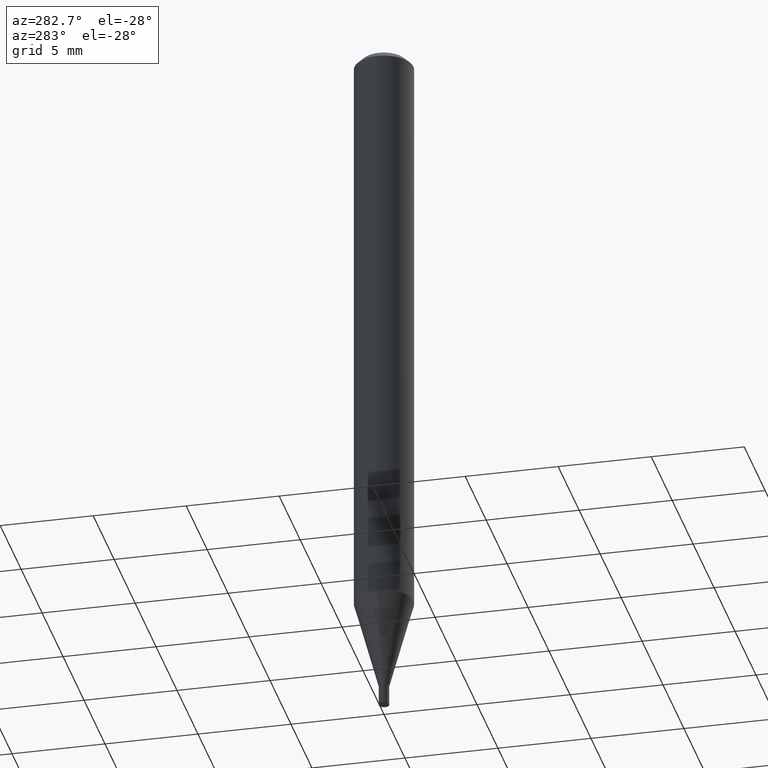
[diagram: clean part render]
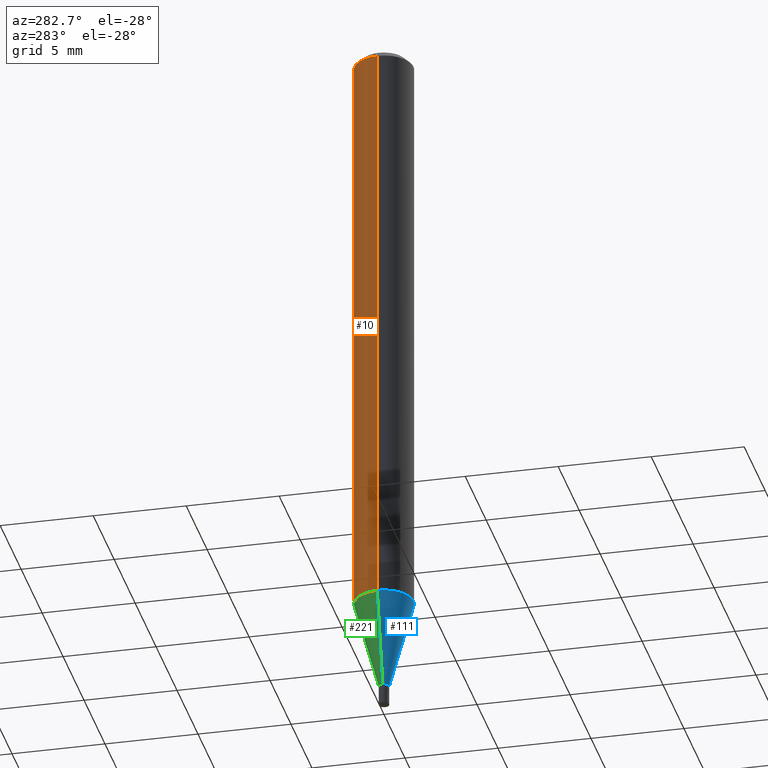
[diagram: same view with three faces highlighted in distinct colors, each labeled with its STEP entity id]
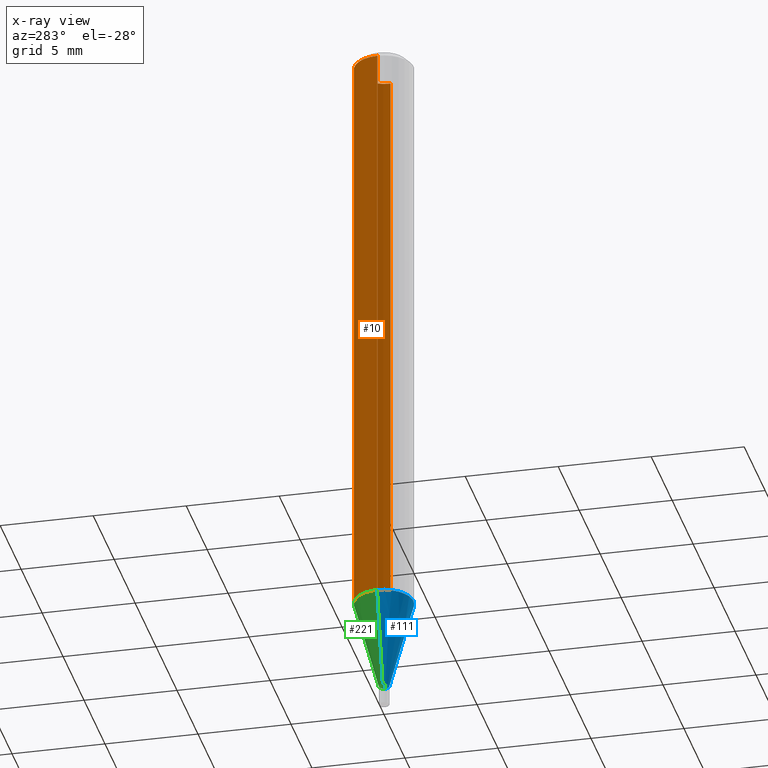
[diagram: x-ray of the same camera — body ghosted, the three highlighted faces saturated]
A machine part, auxiliary view with three faces highlighted in distinct colors.
The next image is the same camera in x-ray (body ghosted, the three faces saturated) — at least one of them is partly hidden behind the body in this view.
Their STEP definitions:

[orange] entity #10 — the highlighted cylindrical surface (edge-blend (fillet) strip) has radius 1.5875 mm, axis along (-0, 0, 1).
#6 = EDGE_CURVE ( 'NONE', #90, #301, #130, .T. ) ;
#10 = ADVANCED_FACE ( 'NONE', ( #121 ), #53, .T. ) ;
#30 = VERTEX_POINT ( 'NONE', #180 ) ;
#48 = ORIENTED_EDGE ( 'NONE', *, *, #423, .F. ) ;
#53 = CYLINDRICAL_SURFACE ( 'NONE', #438, 0.06250000000000000000 ) ;
#83 = VERTEX_POINT ( 'NONE', #389 ) ;
#89 = ORIENTED_EDGE ( 'NONE', *, *, #6, .T. ) ;
#90 = VERTEX_POINT ( 'NONE', #344 ) ;
#104 = DIRECTION ( 'NONE',  ( -2.445468806185136877E-29, 3.491481338843145188E-15, 1.000000000000000000 ) ) ;
#109 = VECTOR ( 'NONE', #337, 39.37007874015748143 ) ;
#118 = EDGE_CURVE ( 'NONE', #83, #30, #402, .T. ) ;
#121 = FACE_OUTER_BOUND ( 'NONE', #368, .T. ) ;
#129 = LINE ( 'NONE', #415, #109 ) ;
#130 = CIRCLE ( 'NONE', #193, 0.06250000000000000000 ) ;
#151 = CARTESIAN_POINT ( 'NONE',  ( -0.06250000000000000000, -3.971934234706977480E-15, -1.264799383410203149 ) ) ;
#153 = DIRECTION ( 'NONE',  ( -2.445468806185136597E-29, 3.491481338843145583E-15, 1.000000000000000000 ) ) ;
#168 = EDGE_CURVE ( 'NONE', #301, #30, #463, .T. ) ;
#180 = CARTESIAN_POINT ( 'NONE',  ( -0.06250000000000000000, -1.790108622469781169E-15, -0.01499999999999999944 ) ) ;
#193 = AXIS2_PLACEMENT_3D ( 'NONE', #270, #153, #196 ) ;
#196 = DIRECTION ( 'NONE',  ( 1.000000000000000000, -6.982962677686262766E-15, 0.000000000000000000 ) ) ;
#200 = CARTESIAN_POINT ( 'NONE',  ( 0.000000000000000000, 0.000000000000000000, 0.000000000000000000 ) ) ;
#205 = AXIS2_PLACEMENT_3D ( 'NONE', #288, #347, #285 ) ;
#251 = DIRECTION ( 'NONE',  ( 1.000000000000000000, -6.982962677686266711E-15, 4.876176775795935793E-29 ) ) ;
#270 = CARTESIAN_POINT ( 'NONE',  ( 3.093027438211846075E-29, -4.416023444557040885E-15, -1.264799383410203149 ) ) ;
#285 = DIRECTION ( 'NONE',  ( 1.000000000000000000, -6.982962677686266711E-15, 0.000000000000000000 ) ) ;
#288 = CARTESIAN_POINT ( 'NONE',  ( 3.668203209277705088E-31, -5.237222008264718399E-17, -0.01499999999999999944 ) ) ;
#301 = VERTEX_POINT ( 'NONE', #151 ) ;
#313 = CARTESIAN_POINT ( 'NONE',  ( -0.06250000000000000000, 4.440892098500626162E-16, -3.074334431409316114E-30 ) ) ;
#337 = DIRECTION ( 'NONE',  ( -2.445468806185136877E-29, 3.491481338843145188E-15, 1.000000000000000000 ) ) ;
#339 = DIRECTION ( 'NONE',  ( -2.445468806185136597E-29, 3.491481338843145583E-15, 1.000000000000000000 ) ) ;
#344 = CARTESIAN_POINT ( 'NONE',  ( 0.06250000000000000000, -4.852458611912431766E-15, -1.264799383410203149 ) ) ;
#347 = DIRECTION ( 'NONE',  ( -2.445468806185136597E-29, 3.491481338843145583E-15, 1.000000000000000000 ) ) ;
#348 = ORIENTED_EDGE ( 'NONE', *, *, #168, .T. ) ;
#364 = VECTOR ( 'NONE', #104, 39.37007874015748143 ) ;
#368 = EDGE_LOOP ( 'NONE', ( #89, #348, #377, #48 ) ) ;
#377 = ORIENTED_EDGE ( 'NONE', *, *, #118, .F. ) ;
#389 = CARTESIAN_POINT ( 'NONE',  ( 0.06250000000000000000, -4.888073874380388472E-16, -0.01499999999999999944 ) ) ;
#402 = CIRCLE ( 'NONE', #205, 0.06250000000000000000 ) ;
#415 = CARTESIAN_POINT ( 'NONE',  ( 0.06250000000000000000, -4.364351673553916694E-16, 3.047610484872459871E-30 ) ) ;
#423 = EDGE_CURVE ( 'NONE', #90, #83, #129, .T. ) ;
#438 = AXIS2_PLACEMENT_3D ( 'NONE', #200, #339, #251 ) ;
#463 = LINE ( 'NONE', #313, #364 ) ;

[blue] entity #111 — the highlighted conical surface has half-angle 15 deg.
#23 = CIRCLE ( 'NONE', #379, 0.06250000000000000000 ) ;
#32 = DIRECTION ( 'NONE',  ( 0.2588190451025213501, 1.565188264969621968E-15, 0.9659258262890682012 ) ) ;
#46 = VERTEX_POINT ( 'NONE', #140 ) ;
#69 = EDGE_CURVE ( 'NONE', #301, #90, #23, .T. ) ;
#90 = VERTEX_POINT ( 'NONE', #344 ) ;
#92 = CARTESIAN_POINT ( 'NONE',  ( 3.563048050611744147E-29, -5.087088310694462559E-15, -1.457000000000000073 ) ) ;
#98 = EDGE_LOOP ( 'NONE', ( #192, #190, #179, #434 ) ) ;
#99 = DIRECTION ( 'NONE',  ( -2.445468806185136597E-29, 3.491481338843145583E-15, 1.000000000000000000 ) ) ;
#111 = ADVANCED_FACE ( 'NONE', ( #319 ), #239, .T. ) ;
#136 = CARTESIAN_POINT ( 'NONE',  ( 3.563048050611744147E-29, -5.087088310694462559E-15, -1.457000000000000073 ) ) ;
#138 = EDGE_CURVE ( 'NONE', #202, #90, #430, .T. ) ;
#140 = CARTESIAN_POINT ( 'NONE',  ( -0.01099999999999992130, -4.490431422233914869E-15, -1.457000000000000073 ) ) ;
#151 = CARTESIAN_POINT ( 'NONE',  ( -0.06250000000000000000, -3.971934234706977480E-15, -1.264799383410203149 ) ) ;
#173 = CARTESIAN_POINT ( 'NONE',  ( 3.093027438211846075E-29, -4.416023444557040885E-15, -1.264799383410203149 ) ) ;
#179 = ORIENTED_EDGE ( 'NONE', *, *, #138, .T. ) ;
#185 = LINE ( 'NONE', #187, #327 ) ;
#187 = CARTESIAN_POINT ( 'NONE',  ( -0.01099999999999992130, -5.008928609760852258E-15, -1.457000000000000073 ) ) ;
#190 = ORIENTED_EDGE ( 'NONE', *, *, #453, .T. ) ;
#192 = ORIENTED_EDGE ( 'NONE', *, *, #225, .F. ) ;
#202 = VERTEX_POINT ( 'NONE', #264 ) ;
#203 = DIRECTION ( 'NONE',  ( -2.445468806185136597E-29, 3.491481338843145583E-15, 1.000000000000000000 ) ) ;
#225 = EDGE_CURVE ( 'NONE', #46, #301, #185, .T. ) ;
#239 = CONICAL_SURFACE ( 'NONE', #374, 0.01099999999999992130, 0.2617993877991500740 ) ;
#240 = DIRECTION ( 'NONE',  ( 1.000000000000000000, -6.982962677686295110E-15, 0.000000000000000000 ) ) ;
#243 = CIRCLE ( 'NONE', #365, 0.01099999999999992130 ) ;
#252 = CARTESIAN_POINT ( 'NONE',  ( 0.01099999999999992130, -5.163900900149011871E-15, -1.457000000000000073 ) ) ;
#264 = CARTESIAN_POINT ( 'NONE',  ( 0.01099999999999992130, -5.163900900149011871E-15, -1.457000000000000073 ) ) ;
#276 = VECTOR ( 'NONE', #32, 39.37007874015747433 ) ;
#301 = VERTEX_POINT ( 'NONE', #151 ) ;
#319 = FACE_OUTER_BOUND ( 'NONE', #98, .T. ) ;
#327 = VECTOR ( 'NONE', #399, 39.37007874015747433 ) ;
#344 = CARTESIAN_POINT ( 'NONE',  ( 0.06250000000000000000, -4.852458611912431766E-15, -1.264799383410203149 ) ) ;
#365 = AXIS2_PLACEMENT_3D ( 'NONE', #92, #203, #240 ) ;
#374 = AXIS2_PLACEMENT_3D ( 'NONE', #136, #99, #462 ) ;
#379 = AXIS2_PLACEMENT_3D ( 'NONE', #173, #459, #425 ) ;
#399 = DIRECTION ( 'NONE',  ( -0.2588190451025213501, 5.211531920934551042E-15, 0.9659258262890682012 ) ) ;
#425 = DIRECTION ( 'NONE',  ( 1.000000000000000000, -6.982962677686262766E-15, 0.000000000000000000 ) ) ;
#430 = LINE ( 'NONE', #252, #276 ) ;
#434 = ORIENTED_EDGE ( 'NONE', *, *, #69, .F. ) ;
#453 = EDGE_CURVE ( 'NONE', #46, #202, #243, .T. ) ;
#459 = DIRECTION ( 'NONE',  ( -2.445468806185136597E-29, 3.491481338843145583E-15, 1.000000000000000000 ) ) ;
#462 = DIRECTION ( 'NONE',  ( 1.000000000000000000, -6.982962677686295110E-15, 0.000000000000000000 ) ) ;

[green] entity #221 — the highlighted conical surface has half-angle 15 deg.
#3 = EDGE_LOOP ( 'NONE', ( #17, #55, #447, #283 ) ) ;
#6 = EDGE_CURVE ( 'NONE', #90, #301, #130, .T. ) ;
#17 = ORIENTED_EDGE ( 'NONE', *, *, #296, .T. ) ;
#32 = DIRECTION ( 'NONE',  ( 0.2588190451025213501, 1.565188264969621968E-15, 0.9659258262890682012 ) ) ;
#46 = VERTEX_POINT ( 'NONE', #140 ) ;
#47 = DIRECTION ( 'NONE',  ( 1.000000000000000000, -6.982962677686295110E-15, 0.000000000000000000 ) ) ;
#55 = ORIENTED_EDGE ( 'NONE', *, *, #225, .T. ) ;
#74 = DIRECTION ( 'NONE',  ( -2.445468806185136597E-29, 3.491481338843145583E-15, 1.000000000000000000 ) ) ;
#90 = VERTEX_POINT ( 'NONE', #344 ) ;
#108 = DIRECTION ( 'NONE',  ( 1.000000000000000000, -6.982962677686295110E-15, 0.000000000000000000 ) ) ;
#113 = DIRECTION ( 'NONE',  ( -2.445468806185136597E-29, 3.491481338843145583E-15, 1.000000000000000000 ) ) ;
#125 = AXIS2_PLACEMENT_3D ( 'NONE', #326, #113, #47 ) ;
#130 = CIRCLE ( 'NONE', #193, 0.06250000000000000000 ) ;
#138 = EDGE_CURVE ( 'NONE', #202, #90, #430, .T. ) ;
#140 = CARTESIAN_POINT ( 'NONE',  ( -0.01099999999999992130, -4.490431422233914869E-15, -1.457000000000000073 ) ) ;
#151 = CARTESIAN_POINT ( 'NONE',  ( -0.06250000000000000000, -3.971934234706977480E-15, -1.264799383410203149 ) ) ;
#153 = DIRECTION ( 'NONE',  ( -2.445468806185136597E-29, 3.491481338843145583E-15, 1.000000000000000000 ) ) ;
#184 = FACE_OUTER_BOUND ( 'NONE', #3, .T. ) ;
#185 = LINE ( 'NONE', #187, #327 ) ;
#187 = CARTESIAN_POINT ( 'NONE',  ( -0.01099999999999992130, -5.008928609760852258E-15, -1.457000000000000073 ) ) ;
#193 = AXIS2_PLACEMENT_3D ( 'NONE', #270, #153, #196 ) ;
#196 = DIRECTION ( 'NONE',  ( 1.000000000000000000, -6.982962677686262766E-15, 0.000000000000000000 ) ) ;
#202 = VERTEX_POINT ( 'NONE', #264 ) ;
#221 = ADVANCED_FACE ( 'NONE', ( #184 ), #268, .T. ) ;
#225 = EDGE_CURVE ( 'NONE', #46, #301, #185, .T. ) ;
#252 = CARTESIAN_POINT ( 'NONE',  ( 0.01099999999999992130, -5.163900900149011871E-15, -1.457000000000000073 ) ) ;
#254 = AXIS2_PLACEMENT_3D ( 'NONE', #266, #74, #108 ) ;
#264 = CARTESIAN_POINT ( 'NONE',  ( 0.01099999999999992130, -5.163900900149011871E-15, -1.457000000000000073 ) ) ;
#266 = CARTESIAN_POINT ( 'NONE',  ( 3.563048050611744147E-29, -5.087088310694462559E-15, -1.457000000000000073 ) ) ;
#268 = CONICAL_SURFACE ( 'NONE', #254, 0.01099999999999992130, 0.2617993877991500740 ) ;
#270 = CARTESIAN_POINT ( 'NONE',  ( 3.093027438211846075E-29, -4.416023444557040885E-15, -1.264799383410203149 ) ) ;
#276 = VECTOR ( 'NONE', #32, 39.37007874015747433 ) ;
#283 = ORIENTED_EDGE ( 'NONE', *, *, #138, .F. ) ;
#296 = EDGE_CURVE ( 'NONE', #202, #46, #308, .T. ) ;
#301 = VERTEX_POINT ( 'NONE', #151 ) ;
#308 = CIRCLE ( 'NONE', #125, 0.01099999999999992130 ) ;
#326 = CARTESIAN_POINT ( 'NONE',  ( 3.563048050611744147E-29, -5.087088310694462559E-15, -1.457000000000000073 ) ) ;
#327 = VECTOR ( 'NONE', #399, 39.37007874015747433 ) ;
#344 = CARTESIAN_POINT ( 'NONE',  ( 0.06250000000000000000, -4.852458611912431766E-15, -1.264799383410203149 ) ) ;
#399 = DIRECTION ( 'NONE',  ( -0.2588190451025213501, 5.211531920934551042E-15, 0.9659258262890682012 ) ) ;
#430 = LINE ( 'NONE', #252, #276 ) ;
#447 = ORIENTED_EDGE ( 'NONE', *, *, #6, .F. ) ;